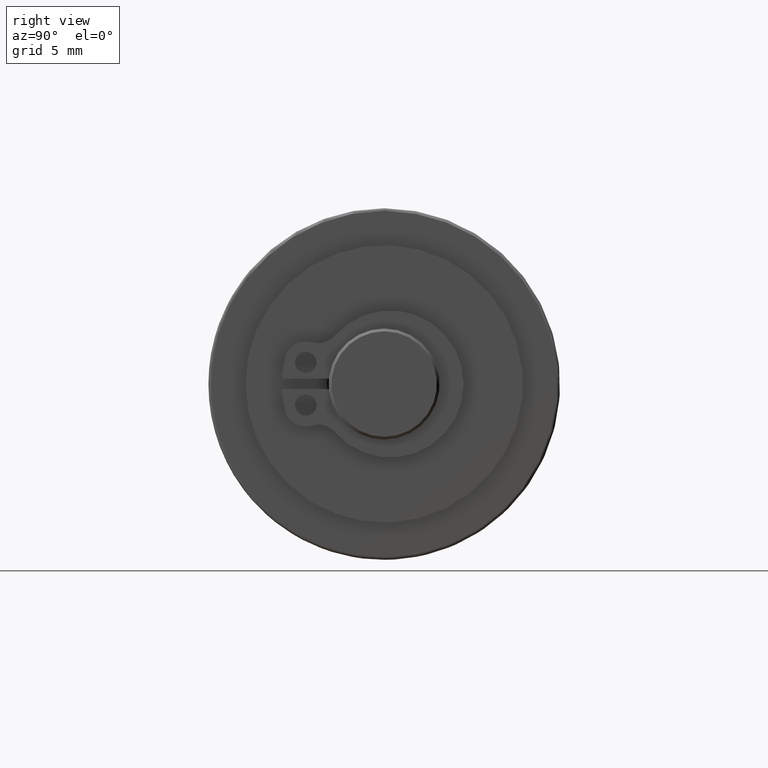
[diagram: clean part render]
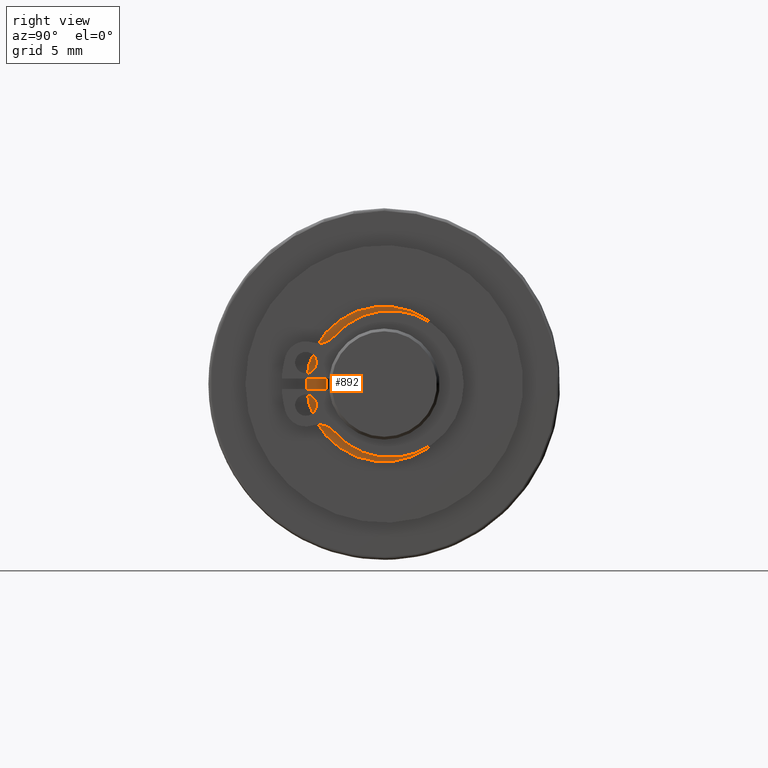
[diagram: same view with one face highlighted and labeled with its STEP entity id]
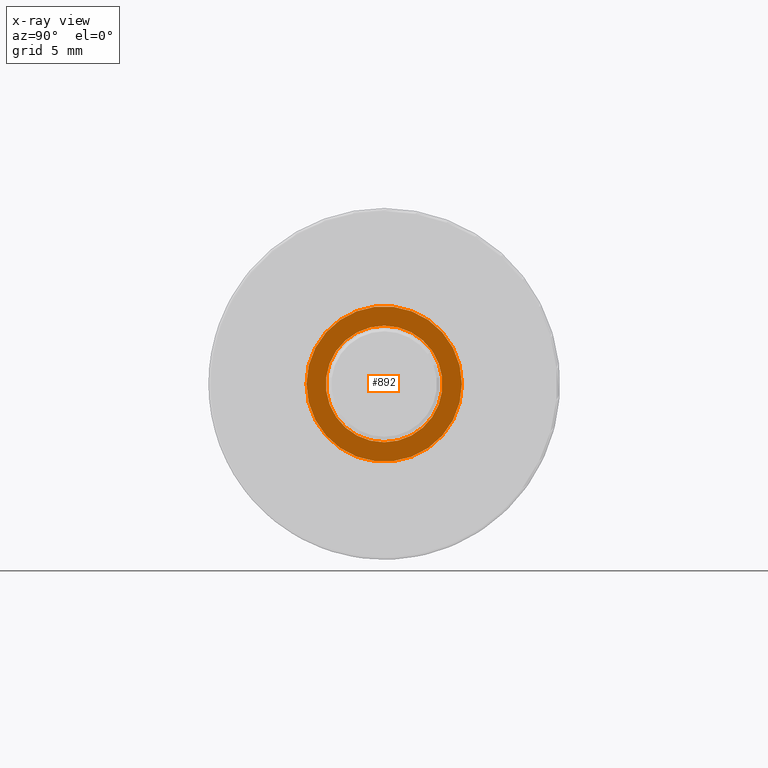
[diagram: x-ray of the same camera — body ghosted, the highlighted face saturated]
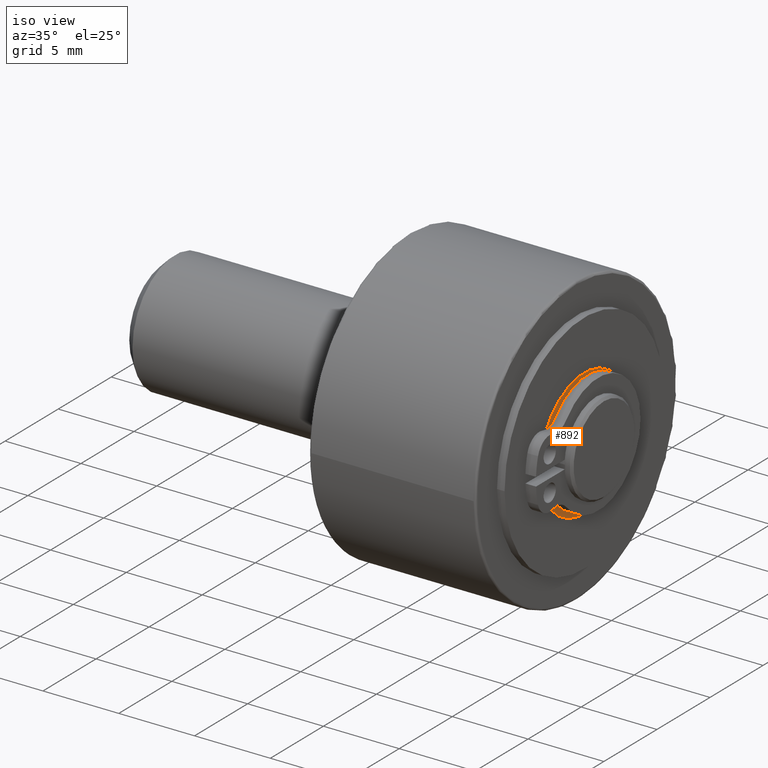
[diagram: same view with one face highlighted and labeled with its STEP entity id]
A machine part, right view. The second image highlights one B-rep face of the part: STEP entity #892.
The next image is the same camera in x-ray: the body ghosted, the highlighted face saturated — about 0% of this face is hidden behind the body in this view.
A second angle (iso view) of the same face is appended — the face is thin or edge-on in the first view.
In plain terms, the highlighted planar face has unit normal (1, 0, 0).
Its self-contained STEP definition (entity closure, byte-faithful):
#71=FACE_BOUND('',#231,.T.);
#95=PLANE('',#1070);
#162=FACE_OUTER_BOUND('',#230,.T.);
#230=EDGE_LOOP('',(#765));
#231=EDGE_LOOP('',(#766));
#380=CIRCLE('',#1069,4.2);
#381=CIRCLE('',#1071,3.15);
#459=VERTEX_POINT('',#1613);
#460=VERTEX_POINT('',#1617);
#565=EDGE_CURVE('',#459,#459,#380,.T.);
#567=EDGE_CURVE('',#460,#460,#381,.T.);
#765=ORIENTED_EDGE('',*,*,#565,.T.);
#766=ORIENTED_EDGE('',*,*,#567,.F.);
#892=ADVANCED_FACE('',(#162,#71),#95,.T.);
#1069=AXIS2_PLACEMENT_3D('',#1614,#1305,#1306);
#1070=AXIS2_PLACEMENT_3D('',#1616,#1308,#1309);
#1071=AXIS2_PLACEMENT_3D('',#1618,#1310,#1311);
#1305=DIRECTION('center_axis',(0.,3.06161699786839E-16,-1.));
#1306=DIRECTION('ref_axis',(1.,0.,0.));
#1308=DIRECTION('center_axis',(0.,3.06161699786839E-16,-1.));
#1309=DIRECTION('ref_axis',(-1.,0.,0.));
#1310=DIRECTION('center_axis',(0.,3.06161699786839E-16,-1.));
#1311=DIRECTION('ref_axis',(1.,0.,0.));
#1613=CARTESIAN_POINT('',(-5.14351655641888E-16,-4.2,-6.));
#1614=CARTESIAN_POINT('Origin',(0.,6.93889390390724E-16,-6.));
#1616=CARTESIAN_POINT('Origin',(0.,3.15,-6.));
#1617=CARTESIAN_POINT('',(3.15,3.08125648659308E-16,-6.));
#1618=CARTESIAN_POINT('Origin',(0.,6.93889390390724E-16,-6.));